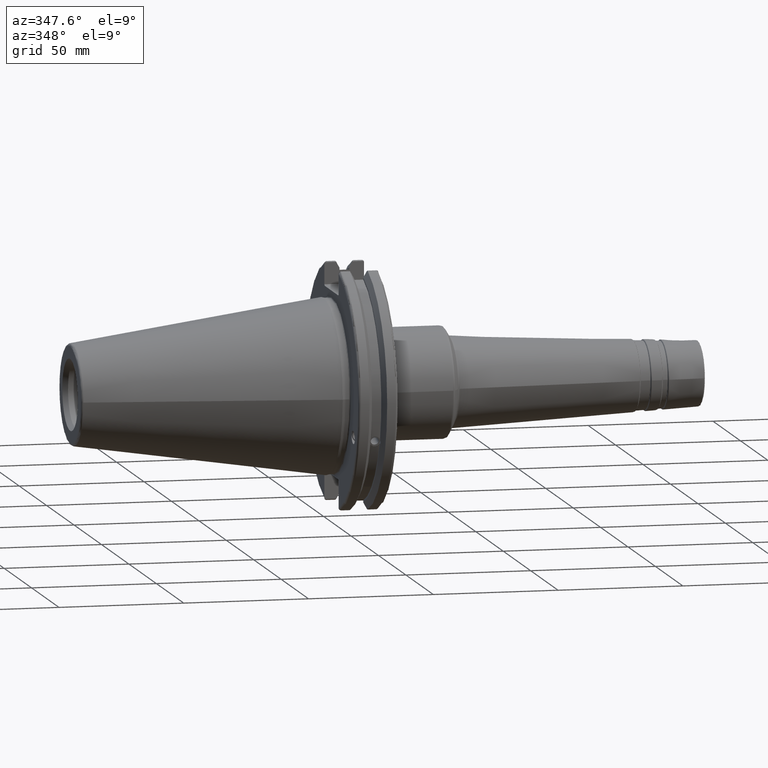
[diagram: clean part render]
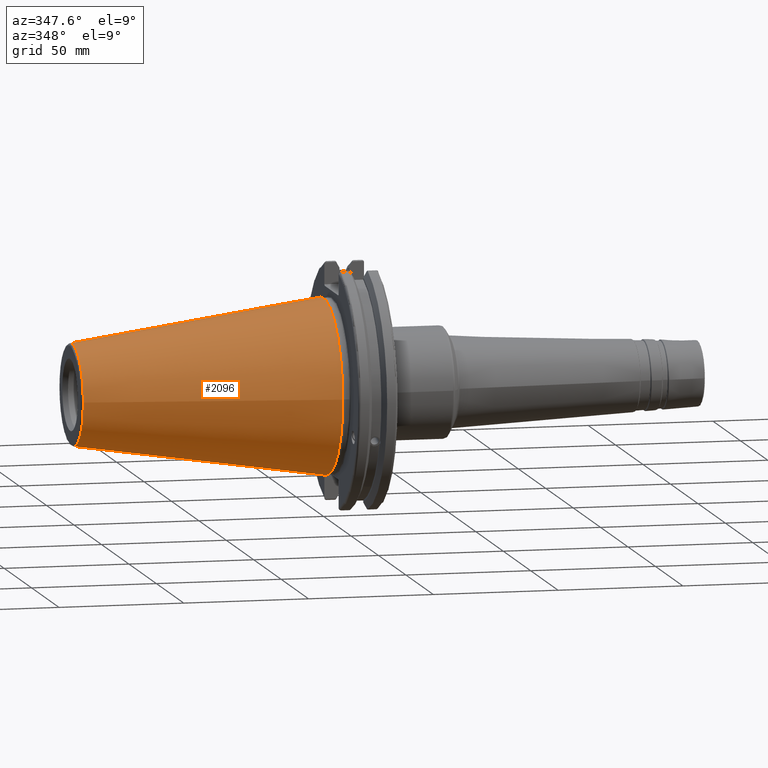
[diagram: same view with one face highlighted and labeled with its STEP entity id]
A machine part, auxiliary view. The second image highlights one B-rep face of the part: STEP entity #2096.
In plain terms, the highlighted conical surface has half-angle 8.297 deg.
Its self-contained STEP definition (entity closure, byte-faithful):
#87=CONICAL_SURFACE('',#2377,27.5166666666666,0.14481249823894);
#231=LINE('',#4142,#332);
#332=VECTOR('',#2976,27.5166666666666);
#454=FACE_OUTER_BOUND('',#576,.T.);
#576=EDGE_LOOP('',(#1858,#1859,#1860,#1861,#1862,#1863,#1864));
#754=CIRCLE('',#2368,20.233121911427);
#755=CIRCLE('',#2369,20.233121911427);
#759=CIRCLE('',#2373,20.233121911427);
#762=CIRCLE('',#2378,34.925);
#763=CIRCLE('',#2379,34.925);
#993=VERTEX_POINT('',#4121);
#994=VERTEX_POINT('',#4122);
#995=VERTEX_POINT('',#4124);
#1000=VERTEX_POINT('',#4138);
#1001=VERTEX_POINT('',#4139);
#1298=EDGE_CURVE('',#993,#994,#754,.T.);
#1299=EDGE_CURVE('',#994,#995,#755,.T.);
#1303=EDGE_CURVE('',#995,#993,#759,.T.);
#1306=EDGE_CURVE('',#1000,#1001,#762,.T.);
#1307=EDGE_CURVE('',#1001,#1000,#763,.T.);
#1308=EDGE_CURVE('',#1001,#994,#231,.T.);
#1858=ORIENTED_EDGE('',*,*,#1306,.F.);
#1859=ORIENTED_EDGE('',*,*,#1307,.F.);
#1860=ORIENTED_EDGE('',*,*,#1308,.T.);
#1861=ORIENTED_EDGE('',*,*,#1298,.F.);
#1862=ORIENTED_EDGE('',*,*,#1303,.F.);
#1863=ORIENTED_EDGE('',*,*,#1299,.F.);
#1864=ORIENTED_EDGE('',*,*,#1308,.F.);
#2096=ADVANCED_FACE('',(#454),#87,.T.);
#2368=AXIS2_PLACEMENT_3D('',#4123,#2952,#2953);
#2369=AXIS2_PLACEMENT_3D('',#4125,#2954,#2955);
#2373=AXIS2_PLACEMENT_3D('',#4131,#2962,#2963);
#2377=AXIS2_PLACEMENT_3D('',#4137,#2970,#2971);
#2378=AXIS2_PLACEMENT_3D('',#4140,#2972,#2973);
#2379=AXIS2_PLACEMENT_3D('',#4141,#2974,#2975);
#2952=DIRECTION('center_axis',(-1.,0.,0.));
#2953=DIRECTION('ref_axis',(0.,-1.,3.06161699786838E-17));
#2954=DIRECTION('center_axis',(-1.,0.,0.));
#2955=DIRECTION('ref_axis',(0.,-1.,3.06161699786838E-17));
#2962=DIRECTION('center_axis',(-1.,0.,0.));
#2963=DIRECTION('ref_axis',(0.,-1.,3.06161699786838E-17));
#2970=DIRECTION('center_axis',(1.,0.,0.));
#2971=DIRECTION('ref_axis',(0.,1.,0.));
#2972=DIRECTION('center_axis',(1.,0.,0.));
#2973=DIRECTION('ref_axis',(0.,0.,-1.));
#2974=DIRECTION('center_axis',(1.,0.,0.));
#2975=DIRECTION('ref_axis',(0.,0.,-1.));
#2976=DIRECTION('',(-0.989532981063281,0.144306893071729,1.76724974695192E-17));
#4121=CARTESIAN_POINT('',(-100.744306893072,20.233121911427,-6.19460699639681E-15));
#4122=CARTESIAN_POINT('',(-100.744306893072,-20.233121911427,-2.47784279855872E-15));
#4123=CARTESIAN_POINT('Origin',(-100.744306893072,0.,-3.09730349819841E-15));
#4124=CARTESIAN_POINT('',(-100.744306893072,-2.47784279855872E-15,20.233121911427));
#4125=CARTESIAN_POINT('Origin',(-100.744306893072,0.,-3.09730349819841E-15));
#4131=CARTESIAN_POINT('Origin',(-100.744306893072,0.,-3.09730349819841E-15));
#4137=CARTESIAN_POINT('Origin',(-50.8,0.,0.));
#4138=CARTESIAN_POINT('',(0.,34.925,0.));
#4139=CARTESIAN_POINT('',(-8.88178419700125E-15,-34.925,-4.27707894602213E-15));
#4140=CARTESIAN_POINT('Origin',(0.,0.,0.));
#4141=CARTESIAN_POINT('Origin',(0.,0.,0.));
#4142=CARTESIAN_POINT('',(-50.8,-27.5166666666666,-3.3698197756538E-15));